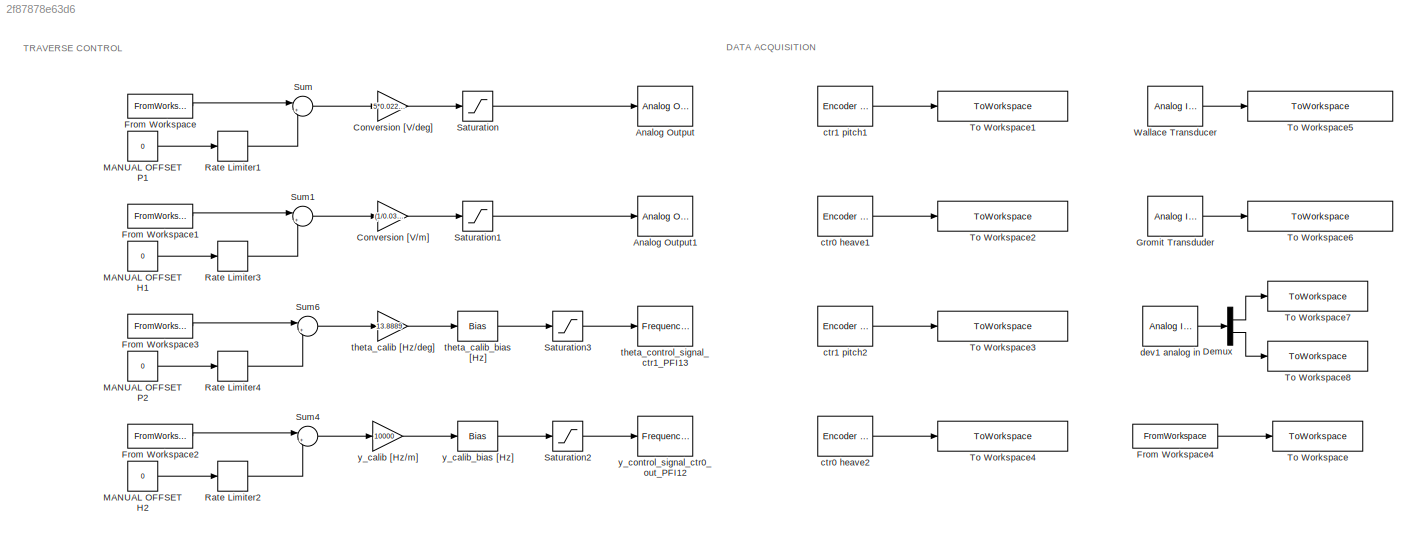
MODEL slx_2f87878e63d6
KIND model
CONFIG AbsTol = auto
CONFIG EnableMultiTasking = off
CONFIG FixedStep = auto
CONFIG MaxStep = auto
CONFIG MinStep = auto
CONFIG RelTol = 1e-3
CONFIG SampleTimeConstraint = Unconstrained
CONFIG SolverName = ode5
CONFIG StartTime = 0.0
CONFIG StopTime = inf
BLOCK [Reference] Analog Output  REF=sldrtlib/Analog Output
  AttributesFormatString = National Instruments\nPCIe-6353 [auto]
  SourceBlock = sldrtlib/Analog Output
  SourceType = Simulink Desktop Real-Time Analog Output
BLOCK [Reference] Analog Output1  REF=sldrtlib/Analog Output
  AttributesFormatString = National Instruments\nPCIe-6353 [auto]
  SourceBlock = sldrtlib/Analog Output
  SourceType = Simulink Desktop Real-Time Analog Output
BLOCK [Gain] Conversion [V//deg]
  Gain = 5*0.022222
BLOCK [Gain] Conversion [V//m]
  Gain = (1/0.03)*(1/(0.991-0.01095*freq + 0.04966*heave1))
BLOCK [Demux] Demux
  Outputs = [4 1]
BLOCK [FromWorkspace] From Workspace
  Interpolate = off
  OutputAfterFinalValue = Holding final value
  SampleTime = T
  VariableName = outp1
BLOCK [FromWorkspace] From Workspace1
  Interpolate = off
  OutputAfterFinalValue = Holding final value
  SampleTime = T
  VariableName = outh1
BLOCK [FromWorkspace] From Workspace2
  Interpolate = off
  OutputAfterFinalValue = Holding final value
  SampleTime = T
  VariableName = outh2
BLOCK [FromWorkspace] From Workspace3
  Interpolate = off
  OutputAfterFinalValue = Holding final value
  SampleTime = T
  VariableName = outp2
BLOCK [FromWorkspace] From Workspace4
  Interpolate = off
  OutputAfterFinalValue = Holding final value
  SampleTime = T
  VariableName = sync_sig
BLOCK [Reference] Gromit Transduder  REF=sldrtlib/Analog Input
  AttributesFormatString = National Instruments\nPCIe-6351 [auto]
  SourceBlock = sldrtlib/Analog Input
  SourceType = Simulink Desktop Real-Time Analog Input
BLOCK [Constant] MANUAL OFFSET H1
  SampleTime = T
  Value = 0
BLOCK [Constant] MANUAL OFFSET H2
  SampleTime = T
  Value = 0
BLOCK [Constant] MANUAL OFFSET P1
  SampleTime = T
  Value = 0
BLOCK [Constant] MANUAL OFFSET P2
  SampleTime = T
  Value = 0
BLOCK [RateLimiter] Rate Limiter1
  FallingSlewLimit = -15
  RisingSlewLimit = 15
  SampleTimeMode = inherited
BLOCK [RateLimiter] Rate Limiter2
  FallingSlewLimit = -0.05
  RisingSlewLimit = 0.05
  SampleTimeMode = inherited
BLOCK [RateLimiter] Rate Limiter3
  FallingSlewLimit = -0.05
  RisingSlewLimit = 0.05
  SampleTimeMode = inherited
BLOCK [RateLimiter] Rate Limiter4
  FallingSlewLimit = -15
  RisingSlewLimit = 15
  SampleTimeMode = inherited
BLOCK [Saturate] Saturation
  LowerLimit = -10
  UpperLimit = 10
BLOCK [Saturate] Saturation1
  LowerLimit = -10
  UpperLimit = 10
BLOCK [Saturate] Saturation2
  LowerLimit = 5000
  UpperLimit = 10000
BLOCK [Saturate] Saturation3
  LowerLimit = 5000
  UpperLimit = 9200
BLOCK [Sum] Sum
  Inputs = |++
BLOCK [Sum] Sum1
  Inputs = |++
BLOCK [Sum] Sum4
  Inputs = |++
BLOCK [Sum] Sum6
  Inputs = |++
BLOCK [ToWorkspace] To Workspace
  MaxDataPoints = inf
  SampleTime = T
  Save2DSignal = 2-D array (concatenate along first dimension)
  VariableName = ref_signal
BLOCK [ToWorkspace] To Workspace1
  MaxDataPoints = inf
  SampleTime = T
  Save2DSignal = 2-D array (concatenate along first dimension)
  VariableName = raw_encoder_p1
BLOCK [ToWorkspace] To Workspace2
  MaxDataPoints = inf
  SampleTime = T
  Save2DSignal = 2-D array (concatenate along first dimension)
  VariableName = raw_encoder_h1
BLOCK [ToWorkspace] To Workspace3
  MaxDataPoints = inf
  SampleTime = T
  Save2DSignal = 2-D array (concatenate along first dimension)
  VariableName = raw_encoder_p2
BLOCK [ToWorkspace] To Workspace4
  MaxDataPoints = inf
  SampleTime = T
  Save2DSignal = 2-D array (concatenate along first dimension)
  VariableName = raw_encoder_h2
BLOCK [ToWorkspace] To Workspace5
  MaxDataPoints = inf
  SampleTime = T
  Save2DSignal = 2-D array (concatenate along first dimension)
  VariableName = raw_force_wallace
BLOCK [ToWorkspace] To Workspace6
  MaxDataPoints = inf
  SampleTime = T
  Save2DSignal = 2-D array (concatenate along first dimension)
  VariableName = raw_force_gromit
BLOCK [ToWorkspace] To Workspace7
  MaxDataPoints = inf
  SampleTime = T
  Save2DSignal = 2-D array (concatenate along first dimension)
  VariableName = raw_vectrino
BLOCK [ToWorkspace] To Workspace8
  MaxDataPoints = inf
  SampleTime = T
  Save2DSignal = 2-D array (concatenate along first dimension)
  VariableName = raw_accelmeter
BLOCK [Reference] Wallace Transducer  REF=sldrtlib/Analog Input
  AttributesFormatString = National Instruments\nPCIe-6353 [auto]
  SourceBlock = sldrtlib/Analog Input
  SourceType = Simulink Desktop Real-Time Analog Input
BLOCK [Reference] ctr0 heave1  REF=sldrtlib/Encoder Input
  AttributesFormatString = National Instruments\nPCIe-6353 [auto]
  SourceBlock = sldrtlib/Encoder Input
  SourceType = Simulink Desktop Real-Time Encoder Input
BLOCK [Reference] ctr0 heave2  REF=sldrtlib/Encoder Input
  AttributesFormatString = National Instruments\nPCIe-6351 [auto]
  SourceBlock = sldrtlib/Encoder Input
  SourceType = Simulink Desktop Real-Time Encoder Input
BLOCK [Reference] ctr1 pitch1  REF=sldrtlib/Encoder Input
  AttributesFormatString = National Instruments\nPCIe-6353 [auto]
  SourceBlock = sldrtlib/Encoder Input
  SourceType = Simulink Desktop Real-Time Encoder Input
BLOCK [Reference] ctr1 pitch2  REF=sldrtlib/Encoder Input
  AttributesFormatString = National Instruments\nPCIe-6351 [auto]
  SourceBlock = sldrtlib/Encoder Input
  SourceType = Simulink Desktop Real-Time Encoder Input
BLOCK [Reference] dev1 analog in  REF=sldrtlib/Analog Input
  AttributesFormatString = National Instruments\nPCIe-6323 [auto]
  SourceBlock = sldrtlib/Analog Input
  SourceType = Simulink Desktop Real-Time Analog Input
BLOCK [Gain] theta_calib [Hz//deg]
  Gain = 13.8889
BLOCK [Bias] theta_calib_bias [Hz]
  Bias = 5000
  NameLocation = top
  SaturateOnIntegerOverflow = off
BLOCK [Reference] theta_control_signal_ctr1_PFI13  REF=sldrtlib/Frequency Output
  AttributesFormatString = National Instruments\nPCIe-6323 [auto]
  SourceBlock = sldrtlib/Frequency Output
  SourceType = Simulink Desktop Real-Time Frequency Output
BLOCK [Gain] y_calib [Hz//m]
  Gain = 10000
BLOCK [Bias] y_calib_bias [Hz]
  Bias = 5000
  SaturateOnIntegerOverflow = off
BLOCK [Reference] y_control_signal_ctr0_out_PFI12  REF=sldrtlib/Frequency Output
  AttributesFormatString = National Instruments\nPCIe-6323 [auto]
  SourceBlock = sldrtlib/Frequency Output
  SourceType = Simulink Desktop Real-Time Frequency Output
ANNOTATION (root): DATA ACQUISITION
ANNOTATION (root): TRAVERSE CONTROL
LINE Conversion [V//deg]:1 -> Saturation:1
LINE Conversion [V//m]:1 -> Saturation1:1
LINE Demux:1 -> To Workspace7:1
LINE Demux:2 -> To Workspace8:1
LINE From Workspace1:1 -> Sum1:1
LINE From Workspace2:1 -> Sum4:1
LINE From Workspace3:1 -> Sum6:1
LINE From Workspace4:1 -> To Workspace:1
LINE From Workspace:1 -> Sum:1
LINE Gromit Transduder:1 -> To Workspace6:1
LINE MANUAL OFFSET H1:1 -> Rate Limiter3:1
LINE MANUAL OFFSET H2:1 -> Rate Limiter2:1
LINE MANUAL OFFSET P1:1 -> Rate Limiter1:1
LINE MANUAL OFFSET P2:1 -> Rate Limiter4:1
LINE Rate Limiter1:1 -> Sum:2
LINE Rate Limiter2:1 -> Sum4:2
LINE Rate Limiter3:1 -> Sum1:2
LINE Rate Limiter4:1 -> Sum6:2
LINE Saturation1:1 -> Analog Output1:1
LINE Saturation2:1 -> y_control_signal_ctr0_out_PFI12:1
LINE Saturation3:1 -> theta_control_signal_ctr1_PFI13:1
LINE Saturation:1 -> Analog Output:1
LINE Sum1:1 -> Conversion [V//m]:1
LINE Sum4:1 -> y_calib [Hz//m]:1
LINE Sum6:1 -> theta_calib [Hz//deg]:1
LINE Sum:1 -> Conversion [V//deg]:1
LINE Wallace Transducer:1 -> To Workspace5:1
LINE ctr0 heave1:1 -> To Workspace2:1
LINE ctr0 heave2:1 -> To Workspace4:1
LINE ctr1 pitch1:1 -> To Workspace1:1
LINE ctr1 pitch2:1 -> To Workspace3:1
LINE dev1 analog in:1 -> Demux:1
LINE theta_calib [Hz//deg]:1 -> theta_calib_bias [Hz]:1
LINE theta_calib_bias [Hz]:1 -> Saturation3:1
LINE y_calib [Hz//m]:1 -> y_calib_bias [Hz]:1
LINE y_calib_bias [Hz]:1 -> Saturation2:1
